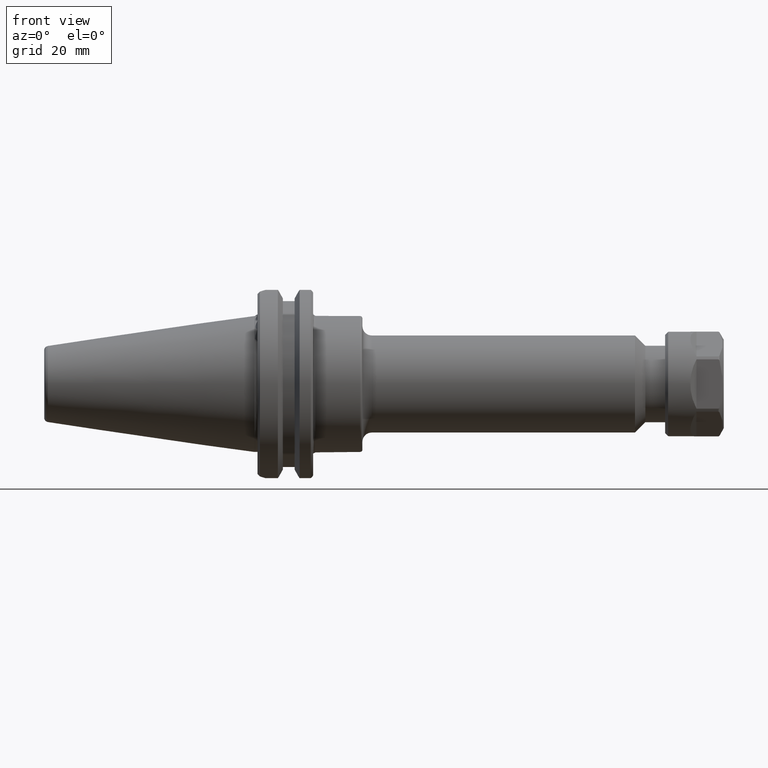
[diagram: clean part render]
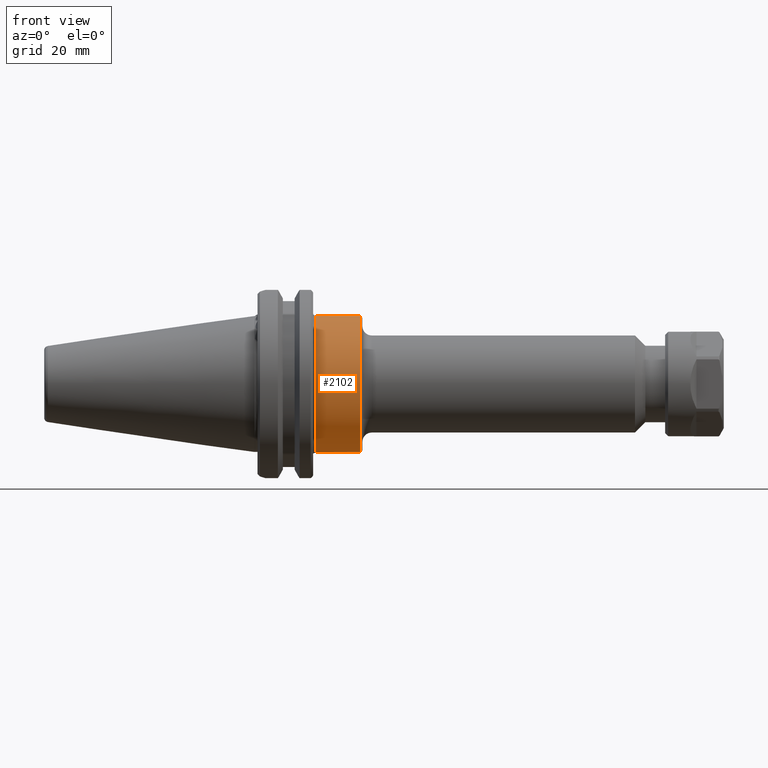
[diagram: same view with one face highlighted and labeled with its STEP entity id]
A machine part, front view. The second image highlights one B-rep face of the part: STEP entity #2102.
In plain terms, the highlighted cylindrical surface (bore or boss wall) has radius 22.225 mm, axis along (1, 0, 0).
Its self-contained STEP definition (entity closure, byte-faithful):
#115=CYLINDRICAL_SURFACE('',#2246,0.875);
#430=FACE_BOUND('',#624,.T.);
#486=FACE_OUTER_BOUND('',#623,.T.);
#623=EDGE_LOOP('',(#1447));
#624=EDGE_LOOP('',(#1448));
#812=CIRCLE('',#2242,0.875);
#815=CIRCLE('',#2247,0.875);
#941=VERTEX_POINT('',#3084);
#950=VERTEX_POINT('',#3105);
#1148=EDGE_CURVE('',#941,#941,#812,.T.);
#1158=EDGE_CURVE('',#950,#950,#815,.T.);
#1447=ORIENTED_EDGE('',*,*,#1158,.F.);
#1448=ORIENTED_EDGE('',*,*,#1148,.F.);
#2102=ADVANCED_FACE('',(#486,#430),#115,.T.);
#2242=AXIS2_PLACEMENT_3D('',#3085,#2484,#2485);
#2246=AXIS2_PLACEMENT_3D('',#3104,#2499,#2500);
#2247=AXIS2_PLACEMENT_3D('',#3106,#2501,#2502);
#2484=DIRECTION('center_axis',(-1.,0.,0.));
#2485=DIRECTION('ref_axis',(0.,-1.,1.22464679914735E-16));
#2499=DIRECTION('center_axis',(1.,0.,0.));
#2500=DIRECTION('ref_axis',(-1.62451355720802E-13,1.,0.));
#2501=DIRECTION('center_axis',(1.,0.,0.));
#2502=DIRECTION('ref_axis',(0.,-1.,1.22464679914735E-16));
#3084=CARTESIAN_POINT('',(0.78,0.875,-2.14313189850787E-16));
#3085=CARTESIAN_POINT('Origin',(0.78,0.,0.));
#3104=CARTESIAN_POINT('Origin',(1.065,0.,0.));
#3105=CARTESIAN_POINT('',(1.35,0.875,0.));
#3106=CARTESIAN_POINT('Origin',(1.35,0.,0.));